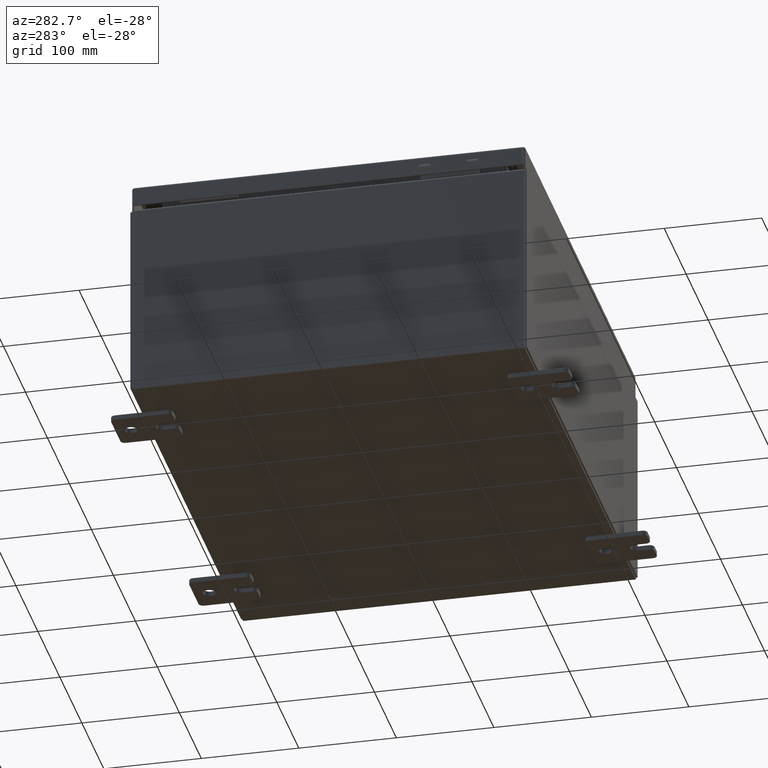
[diagram: clean part render]
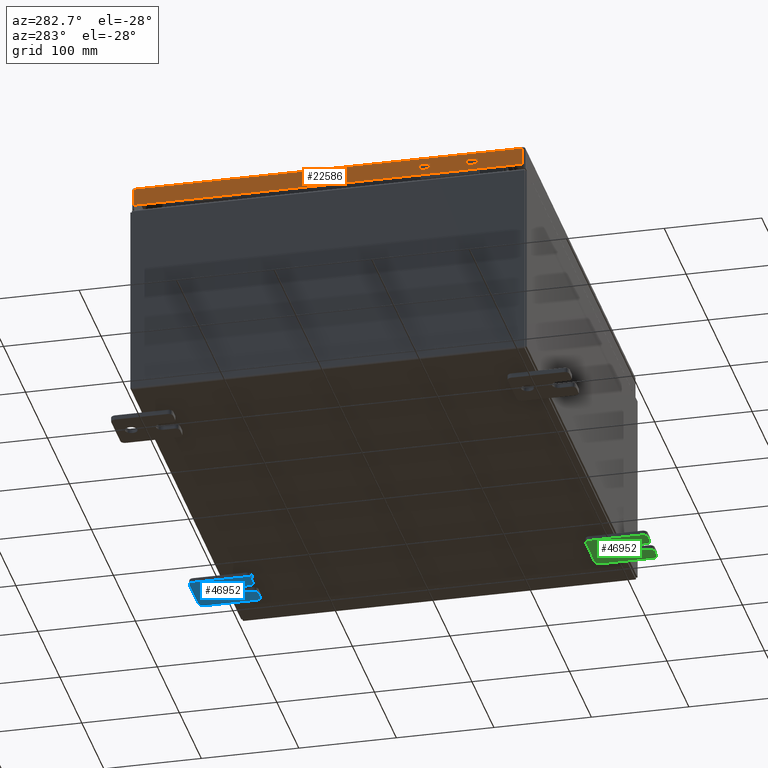
[diagram: same view with three faces highlighted in distinct colors, each labeled with its STEP entity id]
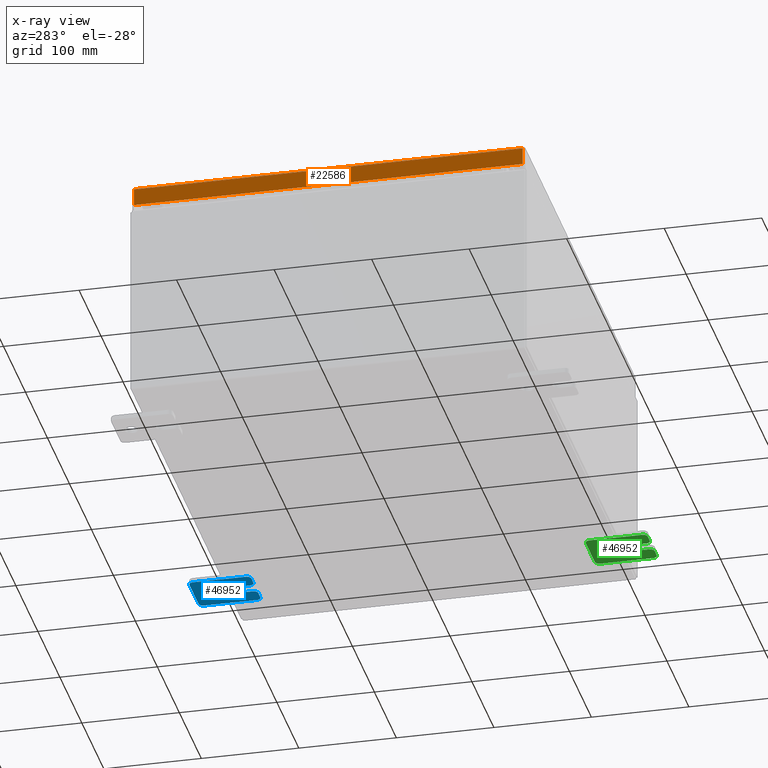
[diagram: x-ray of the same camera — body ghosted, the three highlighted faces saturated]
A machine part, auxiliary view with three faces highlighted in distinct colors.
The next image is the same camera in x-ray (body ghosted, the three faces saturated) — at least one of them is partly hidden behind the body in this view.
Their STEP definitions:

[orange] entity #22586 — the highlighted planar face has unit normal (1, 0, -0).
#2140 = LINE ( 'NONE', #54668, #55309 ) ;
#2833 = CARTESIAN_POINT ( 'NONE',  ( -9.937500000000000000, -7.848657864376261500, -0.7949999999999996000 ) ) ;
#7144 = FACE_OUTER_BOUND ( 'NONE', #55888, .T. ) ;
#8194 = AXIS2_PLACEMENT_3D ( 'NONE', #50796, #12360, #46335 ) ;
#10533 = VECTOR ( 'NONE', #19067, 39.37007874015748100 ) ;
#12294 = DIRECTION ( 'NONE',  ( -3.034122441942816500E-015, 6.982962677686265900E-015, -1.000000000000000000 ) ) ;
#12360 = DIRECTION ( 'NONE',  ( 1.000000000000000000, 3.654886874889598900E-031, -3.034122441942816500E-015 ) ) ;
#18579 = VECTOR ( 'NONE', #57207, 39.37007874015748100 ) ;
#18756 = EDGE_CURVE ( 'NONE', #51115, #52933, #2140, .T. ) ;
#19067 = DIRECTION ( 'NONE',  ( -3.034122441942816500E-015, 6.982962677686265900E-015, -1.000000000000000000 ) ) ;
#19954 = EDGE_CURVE ( 'NONE', #59222, #51115, #23309, .T. ) ;
#22586 = ADVANCED_FACE ( 'NONE', ( #7144 ), #51005, .F. ) ;
#23309 = LINE ( 'NONE', #46266, #34694 ) ;
#25583 = DIRECTION ( 'NONE',  ( 4.379057701015054300E-047, 1.000000000000000000, 1.204594390907076900E-016 ) ) ;
#25755 = ORIENTED_EDGE ( 'NONE', *, *, #18756, .F. ) ;
#26566 = CARTESIAN_POINT ( 'NONE',  ( -9.937499999999998200, -7.848657864376265900, -0.08770000000000026400 ) ) ;
#28131 = CARTESIAN_POINT ( 'NONE',  ( -9.937499999999998200, -7.937499999999999100, -0.08770000000000026400 ) ) ;
#32832 = ORIENTED_EDGE ( 'NONE', *, *, #59875, .T. ) ;
#34694 = VECTOR ( 'NONE', #12294, 39.37007874015748100 ) ;
#36373 = LINE ( 'NONE', #62600, #10533 ) ;
#38556 = VERTEX_POINT ( 'NONE', #55147 ) ;
#41212 = ORIENTED_EDGE ( 'NONE', *, *, #51222, .F. ) ;
#41465 = CARTESIAN_POINT ( 'NONE',  ( -9.937500000000000000, 7.848657864376274800, -0.7949999999999973800 ) ) ;
#44367 = LINE ( 'NONE', #28131, #18579 ) ;
#46266 = CARTESIAN_POINT ( 'NONE',  ( -9.937499999999998200, -7.848657864376267700, -0.07470000000000015500 ) ) ;
#46335 = DIRECTION ( 'NONE',  ( -3.034122441942816500E-015, 0.0000000000000000000, -1.000000000000000000 ) ) ;
#50796 = CARTESIAN_POINT ( 'NONE',  ( -9.937499999999998200, 0.0000000000000000000, 3.059669752903974500E-014 ) ) ;
#51005 = PLANE ( 'NONE',  #8194 ) ;
#51115 = VERTEX_POINT ( 'NONE', #2833 ) ;
#51222 = EDGE_CURVE ( 'NONE', #38556, #59222, #44367, .T. ) ;
#51895 = ORIENTED_EDGE ( 'NONE', *, *, #19954, .F. ) ;
#52933 = VERTEX_POINT ( 'NONE', #41465 ) ;
#54668 = CARTESIAN_POINT ( 'NONE',  ( -9.937500000000000000, -7.937499999999999100, -0.7949999999999996000 ) ) ;
#55147 = CARTESIAN_POINT ( 'NONE',  ( -9.937499999999998200, 7.848657864376270300, -0.08770000000000026400 ) ) ;
#55309 = VECTOR ( 'NONE', #25583, 39.37007874015748100 ) ;
#55888 = EDGE_LOOP ( 'NONE', ( #41212, #32832, #25755, #51895 ) ) ;
#57207 = DIRECTION ( 'NONE',  ( 3.654886874889599300E-031, -1.000000000000000000, -1.077392013397602500E-045 ) ) ;
#59222 = VERTEX_POINT ( 'NONE', #26566 ) ;
#59875 = EDGE_CURVE ( 'NONE', #38556, #52933, #36373, .T. ) ;
#62600 = CARTESIAN_POINT ( 'NONE',  ( -9.937499999999998200, 7.848657864376270300, 8.523365740232501700E-014 ) ) ;

[blue] entity #46952 — the highlighted planar face has unit normal (0, 0, 1).
#594 = DIRECTION ( 'NONE',  ( 0.0000000000000000000, 0.0000000000000000000, -1.000000000000000000 ) ) ;
#730 = ORIENTED_EDGE ( 'NONE', *, *, #60335, .F. ) ;
#969 = DIRECTION ( 'NONE',  ( 0.0000000000000000000, 1.000000000000000000, -1.639108796198558100E-015 ) ) ;
#2200 = DIRECTION ( 'NONE',  ( 0.0000000000000000000, 0.0000000000000000000, -1.000000000000000000 ) ) ;
#2357 = EDGE_LOOP ( 'NONE', ( #4064, #15893 ) ) ;
#2824 = VERTEX_POINT ( 'NONE', #33413 ) ;
#4064 = ORIENTED_EDGE ( 'NONE', *, *, #24241, .T. ) ;
#4345 = CIRCLE ( 'NONE', #62542, 0.2499999999999999200 ) ;
#5141 = VECTOR ( 'NONE', #13257, 39.37007874015748100 ) ;
#5273 = CARTESIAN_POINT ( 'NONE',  ( -0.1879999999999997500, -1.060000000000001200, 0.8099999999999981700 ) ) ;
#5608 = CIRCLE ( 'NONE', #62416, 0.1900000000000011400 ) ;
#6209 = CARTESIAN_POINT ( 'NONE',  ( -0.1879999999999997500, -1.250000000000003300, 0.4400000000000018900 ) ) ;
#6412 = ORIENTED_EDGE ( 'NONE', *, *, #38253, .T. ) ;
#6669 = CARTESIAN_POINT ( 'NONE',  ( -0.1880000000000009700, 0.6249999999999988900, 0.0000000000000000000 ) ) ;
#6699 = FACE_BOUND ( 'NONE', #2357, .T. ) ;
#7738 = AXIS2_PLACEMENT_3D ( 'NONE', #22507, #42023, #12962 ) ;
#9356 = EDGE_CURVE ( 'NONE', #41976, #20430, #19401, .T. ) ;
#9365 = VECTOR ( 'NONE', #29962, 39.37007874015748100 ) ;
#9514 = LINE ( 'NONE', #25213, #46752 ) ;
#9814 = AXIS2_PLACEMENT_3D ( 'NONE', #6669, #40597, #11523 ) ;
#10135 = DIRECTION ( 'NONE',  ( 0.0000000000000000000, 0.0000000000000000000, -1.000000000000000000 ) ) ;
#10734 = CARTESIAN_POINT ( 'NONE',  ( -0.1879999999999997500, -1.060000000000004500, -0.8100000000000047200 ) ) ;
#10978 = CARTESIAN_POINT ( 'NONE',  ( -0.1879999999999997500, -1.060000000000001200, 0.9999999999999992200 ) ) ;
#11523 = DIRECTION ( 'NONE',  ( 0.0000000000000000000, 0.0000000000000000000, -1.000000000000000000 ) ) ;
#11671 = VECTOR ( 'NONE', #58046, 39.37007874015748100 ) ;
#11704 = ORIENTED_EDGE ( 'NONE', *, *, #30404, .F. ) ;
#12346 = CARTESIAN_POINT ( 'NONE',  ( -0.1879999999999997500, -1.060000000000002300, 0.4400000000000018900 ) ) ;
#12586 = CARTESIAN_POINT ( 'NONE',  ( -0.1880000000000001400, -0.6249999999999988900, 0.2500000000000008900 ) ) ;
#12962 = DIRECTION ( 'NONE',  ( 0.0000000000000000000, 0.0000000000000000000, -1.000000000000000000 ) ) ;
#13257 = DIRECTION ( 'NONE',  ( -6.556435184794182400E-016, -1.000000000000000000, -1.639108796198545600E-016 ) ) ;
#13766 = DIRECTION ( 'NONE',  ( -1.000000000000000000, 6.523827964459549700E-016, 5.163192708025532000E-017 ) ) ;
#13945 = AXIS2_PLACEMENT_3D ( 'NONE', #5273, #39210, #10135 ) ;
#14741 = LINE ( 'NONE', #53152, #11671 ) ;
#15258 = ORIENTED_EDGE ( 'NONE', *, *, #52324, .T. ) ;
#15645 = DIRECTION ( 'NONE',  ( 0.0000000000000000000, 0.0000000000000000000, -1.000000000000000000 ) ) ;
#15893 = ORIENTED_EDGE ( 'NONE', *, *, #34207, .T. ) ;
#16572 = FACE_OUTER_BOUND ( 'NONE', #49659, .T. ) ;
#17206 = CARTESIAN_POINT ( 'NONE',  ( -0.1879999999999997500, -1.060000000000003400, -0.4400000000000007800 ) ) ;
#17223 = CARTESIAN_POINT ( 'NONE',  ( -0.1879999999999997500, 1.249999999999994700, -0.8100000000000091600 ) ) ;
#17257 = DIRECTION ( 'NONE',  ( 0.0000000000000000000, 0.0000000000000000000, -1.000000000000000000 ) ) ;
#18088 = CARTESIAN_POINT ( 'NONE',  ( -0.1880000000000009700, 0.6249999999999988900, 0.2499999999999999200 ) ) ;
#18597 = VERTEX_POINT ( 'NONE', #19506 ) ;
#19401 = CIRCLE ( 'NONE', #49813, 0.1900000000000011100 ) ;
#19506 = CARTESIAN_POINT ( 'NONE',  ( -0.1879999999999997500, 1.059999999999993600, -1.000000000000010000 ) ) ;
#19614 = ORIENTED_EDGE ( 'NONE', *, *, #20236, .F. ) ;
#20176 = CARTESIAN_POINT ( 'NONE',  ( -0.1879999999999997500, 1.249999999999994700, -1.000000000000010000 ) ) ;
#20236 = EDGE_CURVE ( 'NONE', #31451, #2824, #4345, .T. ) ;
#20430 = VERTEX_POINT ( 'NONE', #30309 ) ;
#21142 = CARTESIAN_POINT ( 'NONE',  ( -0.1879999999999997500, 1.059999999999996900, 0.9999999999999958900 ) ) ;
#22056 = DIRECTION ( 'NONE',  ( 0.0000000000000000000, 0.0000000000000000000, -1.000000000000000000 ) ) ;
#22355 = AXIS2_PLACEMENT_3D ( 'NONE', #58768, #29710, #594 ) ;
#22507 = CARTESIAN_POINT ( 'NONE',  ( -0.1879999999999997500, 0.0000000000000000000, 0.0000000000000000000 ) ) ;
#23600 = CARTESIAN_POINT ( 'NONE',  ( -0.1879999999999997500, -1.250000000000002200, 0.8099999999999981700 ) ) ;
#23762 = VERTEX_POINT ( 'NONE', #17223 ) ;
#24024 = CARTESIAN_POINT ( 'NONE',  ( -0.1879999999999997500, -1.250000000000002200, 0.9999999999999992200 ) ) ;
#24061 = ORIENTED_EDGE ( 'NONE', *, *, #32159, .T. ) ;
#24241 = EDGE_CURVE ( 'NONE', #42877, #53976, #53347, .T. ) ;
#24730 = CIRCLE ( 'NONE', #55678, 0.2499999999999999200 ) ;
#24992 = DIRECTION ( 'NONE',  ( 6.556435184794182400E-016, 1.000000000000000000, 0.0000000000000000000 ) ) ;
#25213 = CARTESIAN_POINT ( 'NONE',  ( -0.1880000000000005600, -1.250000000000003300, 0.2500000000000008900 ) ) ;
#26315 = AXIS2_PLACEMENT_3D ( 'NONE', #10734, #44692, #15645 ) ;
#26543 = VERTEX_POINT ( 'NONE', #46255 ) ;
#27303 = DIRECTION ( 'NONE',  ( 1.000000000000000000, 0.0000000000000000000, -5.163192708025532000E-017 ) ) ;
#28081 = CARTESIAN_POINT ( 'NONE',  ( -0.1879999999999997500, -1.060000000000004500, -1.000000000000006900 ) ) ;
#29710 = DIRECTION ( 'NONE',  ( -1.000000000000000000, -0.0000000000000000000, -0.0000000000000000000 ) ) ;
#29962 = DIRECTION ( 'NONE',  ( 0.0000000000000000000, 1.639108796198553600E-015, 1.000000000000000000 ) ) ;
#30309 = CARTESIAN_POINT ( 'NONE',  ( -0.1880000000000004200, -1.060000000000003400, -0.2499999999999998100 ) ) ;
#30404 = EDGE_CURVE ( 'NONE', #38548, #34924, #49282, .T. ) ;
#30752 = CIRCLE ( 'NONE', #13945, 0.1900000000000011100 ) ;
#31177 = CIRCLE ( 'NONE', #26315, 0.1900000000000011100 ) ;
#31270 = DIRECTION ( 'NONE',  ( -1.000000000000000000, -0.0000000000000000000, -0.0000000000000000000 ) ) ;
#31451 = VERTEX_POINT ( 'NONE', #12586 ) ;
#32159 = EDGE_CURVE ( 'NONE', #23762, #18597, #39282, .T. ) ;
#32308 = PLANE ( 'NONE',  #7738 ) ;
#32980 = ORIENTED_EDGE ( 'NONE', *, *, #40216, .F. ) ;
#33413 = CARTESIAN_POINT ( 'NONE',  ( -0.1880000000000001400, -0.6249999999999988900, -0.2499999999999998100 ) ) ;
#33541 = VERTEX_POINT ( 'NONE', #43679 ) ;
#34207 = EDGE_CURVE ( 'NONE', #53976, #42877, #24730, .T. ) ;
#34848 = EDGE_CURVE ( 'NONE', #33541, #31451, #9514, .T. ) ;
#34924 = VERTEX_POINT ( 'NONE', #10978 ) ;
#35194 = LINE ( 'NONE', #20176, #9365 ) ;
#35583 = VECTOR ( 'NONE', #53105, 39.37007874015748100 ) ;
#36175 = VECTOR ( 'NONE', #969, 39.37007874015748100 ) ;
#36219 = EDGE_CURVE ( 'NONE', #38548, #26543, #57370, .T. ) ;
#36796 = VERTEX_POINT ( 'NONE', #49542 ) ;
#37663 = CARTESIAN_POINT ( 'NONE',  ( -0.1880000000000001400, -0.6249999999999988900, -0.2499999999999998100 ) ) ;
#37696 = LINE ( 'NONE', #49354, #36175 ) ;
#38253 = EDGE_CURVE ( 'NONE', #44518, #34924, #30752, .T. ) ;
#38548 = VERTEX_POINT ( 'NONE', #21142 ) ;
#39210 = DIRECTION ( 'NONE',  ( -1.000000000000000000, -0.0000000000000000000, -0.0000000000000000000 ) ) ;
#39282 = CIRCLE ( 'NONE', #45412, 0.1900000000000011100 ) ;
#39960 = VERTEX_POINT ( 'NONE', #28081 ) ;
#40216 = EDGE_CURVE ( 'NONE', #23762, #26543, #35194, .T. ) ;
#40597 = DIRECTION ( 'NONE',  ( 1.000000000000000000, 0.0000000000000000000, -5.163192708025532000E-017 ) ) ;
#41771 = ORIENTED_EDGE ( 'NONE', *, *, #9356, .T. ) ;
#41976 = VERTEX_POINT ( 'NONE', #45390 ) ;
#42023 = DIRECTION ( 'NONE',  ( 1.000000000000000000, 0.0000000000000000000, 0.0000000000000000000 ) ) ;
#42437 = CARTESIAN_POINT ( 'NONE',  ( -0.1880000000000009700, 0.6249999999999988900, -0.2499999999999999200 ) ) ;
#42826 = CARTESIAN_POINT ( 'NONE',  ( -0.1880000000000001400, -0.6249999999999988900, 0.0000000000000000000 ) ) ;
#42877 = VERTEX_POINT ( 'NONE', #42437 ) ;
#43679 = CARTESIAN_POINT ( 'NONE',  ( -0.1880000000000004200, -1.060000000000002300, 0.2500000000000008900 ) ) ;
#43913 = EDGE_CURVE ( 'NONE', #39960, #36796, #31177, .T. ) ;
#44518 = VERTEX_POINT ( 'NONE', #23600 ) ;
#44692 = DIRECTION ( 'NONE',  ( -1.000000000000000000, -0.0000000000000000000, -0.0000000000000000000 ) ) ;
#45390 = CARTESIAN_POINT ( 'NONE',  ( -0.1879999999999997500, -1.250000000000004400, -0.4399999999999996700 ) ) ;
#45412 = AXIS2_PLACEMENT_3D ( 'NONE', #60359, #31270, #2200 ) ;
#45875 = ORIENTED_EDGE ( 'NONE', *, *, #61441, .F. ) ;
#46255 = CARTESIAN_POINT ( 'NONE',  ( -0.1879999999999997500, 1.249999999999996700, 0.8099999999999938400 ) ) ;
#46323 = DIRECTION ( 'NONE',  ( -1.000000000000000000, -0.0000000000000000000, -0.0000000000000000000 ) ) ;
#46751 = VERTEX_POINT ( 'NONE', #6209 ) ;
#46752 = VECTOR ( 'NONE', #24992, 39.37007874015748100 ) ;
#46952 = ADVANCED_FACE ( 'NONE', ( #6699, #16572 ), #32308, .F. ) ;
#47718 = DIRECTION ( 'NONE',  ( -6.829619984160660000E-016, -1.000000000000000000, 0.0000000000000000000 ) ) ;
#48480 = LINE ( 'NONE', #24024, #35583 ) ;
#48847 = CARTESIAN_POINT ( 'NONE',  ( -0.1879999999999997500, 1.249999999999997800, 0.9999999999999947800 ) ) ;
#49150 = EDGE_CURVE ( 'NONE', #39960, #18597, #37696, .T. ) ;
#49282 = LINE ( 'NONE', #48847, #50808 ) ;
#49354 = CARTESIAN_POINT ( 'NONE',  ( -0.1879999999999997500, -1.250000000000005600, -1.000000000000006900 ) ) ;
#49495 = ORIENTED_EDGE ( 'NONE', *, *, #34848, .F. ) ;
#49542 = CARTESIAN_POINT ( 'NONE',  ( -0.1879999999999997500, -1.250000000000005600, -0.8100000000000047200 ) ) ;
#49659 = EDGE_LOOP ( 'NONE', ( #53883, #6412, #11704, #58158, #32980, #24061, #61928, #52346, #730, #41771, #45875, #19614, #49495, #15258 ) ) ;
#49813 = AXIS2_PLACEMENT_3D ( 'NONE', #17206, #51161, #22056 ) ;
#50808 = VECTOR ( 'NONE', #53746, 39.37007874015748100 ) ;
#51161 = DIRECTION ( 'NONE',  ( -1.000000000000000000, -0.0000000000000000000, -0.0000000000000000000 ) ) ;
#51969 = EDGE_CURVE ( 'NONE', #44518, #46751, #14741, .T. ) ;
#52324 = EDGE_CURVE ( 'NONE', #33541, #46751, #5608, .T. ) ;
#52346 = ORIENTED_EDGE ( 'NONE', *, *, #43913, .T. ) ;
#53105 = DIRECTION ( 'NONE',  ( 0.0000000000000000000, -1.639108796198553600E-015, -1.000000000000000000 ) ) ;
#53152 = CARTESIAN_POINT ( 'NONE',  ( -0.1879999999999997500, -1.250000000000002200, 0.9999999999999992200 ) ) ;
#53347 = CIRCLE ( 'NONE', #9814, 0.2499999999999999200 ) ;
#53746 = DIRECTION ( 'NONE',  ( 0.0000000000000000000, -1.000000000000000000, 1.639108796198558100E-015 ) ) ;
#53883 = ORIENTED_EDGE ( 'NONE', *, *, #51969, .F. ) ;
#53976 = VERTEX_POINT ( 'NONE', #18088 ) ;
#55678 = AXIS2_PLACEMENT_3D ( 'NONE', #56398, #27303, #61274 ) ;
#56398 = CARTESIAN_POINT ( 'NONE',  ( -0.1880000000000009700, 0.6249999999999988900, 0.0000000000000000000 ) ) ;
#57370 = CIRCLE ( 'NONE', #22355, 0.1900000000000011100 ) ;
#58046 = DIRECTION ( 'NONE',  ( 0.0000000000000000000, -1.639108796198553600E-015, -1.000000000000000000 ) ) ;
#58158 = ORIENTED_EDGE ( 'NONE', *, *, #36219, .T. ) ;
#58768 = CARTESIAN_POINT ( 'NONE',  ( -0.1879999999999997500, 1.059999999999995800, 0.8099999999999938400 ) ) ;
#59854 = LINE ( 'NONE', #37663, #5141 ) ;
#60335 = EDGE_CURVE ( 'NONE', #41976, #36796, #48480, .T. ) ;
#60359 = CARTESIAN_POINT ( 'NONE',  ( -0.1879999999999997500, 1.059999999999993600, -0.8100000000000091600 ) ) ;
#61274 = DIRECTION ( 'NONE',  ( 0.0000000000000000000, 0.0000000000000000000, -1.000000000000000000 ) ) ;
#61441 = EDGE_CURVE ( 'NONE', #2824, #20430, #59854, .T. ) ;
#61928 = ORIENTED_EDGE ( 'NONE', *, *, #49150, .F. ) ;
#62416 = AXIS2_PLACEMENT_3D ( 'NONE', #12346, #46323, #17257 ) ;
#62542 = AXIS2_PLACEMENT_3D ( 'NONE', #42826, #13766, #47718 ) ;

[green] entity #46952 — the highlighted planar face has unit normal (0, 0, 1).
#594 = DIRECTION ( 'NONE',  ( 0.0000000000000000000, 0.0000000000000000000, -1.000000000000000000 ) ) ;
#730 = ORIENTED_EDGE ( 'NONE', *, *, #60335, .F. ) ;
#969 = DIRECTION ( 'NONE',  ( 0.0000000000000000000, 1.000000000000000000, -1.639108796198558100E-015 ) ) ;
#2200 = DIRECTION ( 'NONE',  ( 0.0000000000000000000, 0.0000000000000000000, -1.000000000000000000 ) ) ;
#2357 = EDGE_LOOP ( 'NONE', ( #4064, #15893 ) ) ;
#2824 = VERTEX_POINT ( 'NONE', #33413 ) ;
#4064 = ORIENTED_EDGE ( 'NONE', *, *, #24241, .T. ) ;
#4345 = CIRCLE ( 'NONE', #62542, 0.2499999999999999200 ) ;
#5141 = VECTOR ( 'NONE', #13257, 39.37007874015748100 ) ;
#5273 = CARTESIAN_POINT ( 'NONE',  ( -0.1879999999999997500, -1.060000000000001200, 0.8099999999999981700 ) ) ;
#5608 = CIRCLE ( 'NONE', #62416, 0.1900000000000011400 ) ;
#6209 = CARTESIAN_POINT ( 'NONE',  ( -0.1879999999999997500, -1.250000000000003300, 0.4400000000000018900 ) ) ;
#6412 = ORIENTED_EDGE ( 'NONE', *, *, #38253, .T. ) ;
#6669 = CARTESIAN_POINT ( 'NONE',  ( -0.1880000000000009700, 0.6249999999999988900, 0.0000000000000000000 ) ) ;
#6699 = FACE_BOUND ( 'NONE', #2357, .T. ) ;
#7738 = AXIS2_PLACEMENT_3D ( 'NONE', #22507, #42023, #12962 ) ;
#9356 = EDGE_CURVE ( 'NONE', #41976, #20430, #19401, .T. ) ;
#9365 = VECTOR ( 'NONE', #29962, 39.37007874015748100 ) ;
#9514 = LINE ( 'NONE', #25213, #46752 ) ;
#9814 = AXIS2_PLACEMENT_3D ( 'NONE', #6669, #40597, #11523 ) ;
#10135 = DIRECTION ( 'NONE',  ( 0.0000000000000000000, 0.0000000000000000000, -1.000000000000000000 ) ) ;
#10734 = CARTESIAN_POINT ( 'NONE',  ( -0.1879999999999997500, -1.060000000000004500, -0.8100000000000047200 ) ) ;
#10978 = CARTESIAN_POINT ( 'NONE',  ( -0.1879999999999997500, -1.060000000000001200, 0.9999999999999992200 ) ) ;
#11523 = DIRECTION ( 'NONE',  ( 0.0000000000000000000, 0.0000000000000000000, -1.000000000000000000 ) ) ;
#11671 = VECTOR ( 'NONE', #58046, 39.37007874015748100 ) ;
#11704 = ORIENTED_EDGE ( 'NONE', *, *, #30404, .F. ) ;
#12346 = CARTESIAN_POINT ( 'NONE',  ( -0.1879999999999997500, -1.060000000000002300, 0.4400000000000018900 ) ) ;
#12586 = CARTESIAN_POINT ( 'NONE',  ( -0.1880000000000001400, -0.6249999999999988900, 0.2500000000000008900 ) ) ;
#12962 = DIRECTION ( 'NONE',  ( 0.0000000000000000000, 0.0000000000000000000, -1.000000000000000000 ) ) ;
#13257 = DIRECTION ( 'NONE',  ( -6.556435184794182400E-016, -1.000000000000000000, -1.639108796198545600E-016 ) ) ;
#13766 = DIRECTION ( 'NONE',  ( -1.000000000000000000, 6.523827964459549700E-016, 5.163192708025532000E-017 ) ) ;
#13945 = AXIS2_PLACEMENT_3D ( 'NONE', #5273, #39210, #10135 ) ;
#14741 = LINE ( 'NONE', #53152, #11671 ) ;
#15258 = ORIENTED_EDGE ( 'NONE', *, *, #52324, .T. ) ;
#15645 = DIRECTION ( 'NONE',  ( 0.0000000000000000000, 0.0000000000000000000, -1.000000000000000000 ) ) ;
#15893 = ORIENTED_EDGE ( 'NONE', *, *, #34207, .T. ) ;
#16572 = FACE_OUTER_BOUND ( 'NONE', #49659, .T. ) ;
#17206 = CARTESIAN_POINT ( 'NONE',  ( -0.1879999999999997500, -1.060000000000003400, -0.4400000000000007800 ) ) ;
#17223 = CARTESIAN_POINT ( 'NONE',  ( -0.1879999999999997500, 1.249999999999994700, -0.8100000000000091600 ) ) ;
#17257 = DIRECTION ( 'NONE',  ( 0.0000000000000000000, 0.0000000000000000000, -1.000000000000000000 ) ) ;
#18088 = CARTESIAN_POINT ( 'NONE',  ( -0.1880000000000009700, 0.6249999999999988900, 0.2499999999999999200 ) ) ;
#18597 = VERTEX_POINT ( 'NONE', #19506 ) ;
#19401 = CIRCLE ( 'NONE', #49813, 0.1900000000000011100 ) ;
#19506 = CARTESIAN_POINT ( 'NONE',  ( -0.1879999999999997500, 1.059999999999993600, -1.000000000000010000 ) ) ;
#19614 = ORIENTED_EDGE ( 'NONE', *, *, #20236, .F. ) ;
#20176 = CARTESIAN_POINT ( 'NONE',  ( -0.1879999999999997500, 1.249999999999994700, -1.000000000000010000 ) ) ;
#20236 = EDGE_CURVE ( 'NONE', #31451, #2824, #4345, .T. ) ;
#20430 = VERTEX_POINT ( 'NONE', #30309 ) ;
#21142 = CARTESIAN_POINT ( 'NONE',  ( -0.1879999999999997500, 1.059999999999996900, 0.9999999999999958900 ) ) ;
#22056 = DIRECTION ( 'NONE',  ( 0.0000000000000000000, 0.0000000000000000000, -1.000000000000000000 ) ) ;
#22355 = AXIS2_PLACEMENT_3D ( 'NONE', #58768, #29710, #594 ) ;
#22507 = CARTESIAN_POINT ( 'NONE',  ( -0.1879999999999997500, 0.0000000000000000000, 0.0000000000000000000 ) ) ;
#23600 = CARTESIAN_POINT ( 'NONE',  ( -0.1879999999999997500, -1.250000000000002200, 0.8099999999999981700 ) ) ;
#23762 = VERTEX_POINT ( 'NONE', #17223 ) ;
#24024 = CARTESIAN_POINT ( 'NONE',  ( -0.1879999999999997500, -1.250000000000002200, 0.9999999999999992200 ) ) ;
#24061 = ORIENTED_EDGE ( 'NONE', *, *, #32159, .T. ) ;
#24241 = EDGE_CURVE ( 'NONE', #42877, #53976, #53347, .T. ) ;
#24730 = CIRCLE ( 'NONE', #55678, 0.2499999999999999200 ) ;
#24992 = DIRECTION ( 'NONE',  ( 6.556435184794182400E-016, 1.000000000000000000, 0.0000000000000000000 ) ) ;
#25213 = CARTESIAN_POINT ( 'NONE',  ( -0.1880000000000005600, -1.250000000000003300, 0.2500000000000008900 ) ) ;
#26315 = AXIS2_PLACEMENT_3D ( 'NONE', #10734, #44692, #15645 ) ;
#26543 = VERTEX_POINT ( 'NONE', #46255 ) ;
#27303 = DIRECTION ( 'NONE',  ( 1.000000000000000000, 0.0000000000000000000, -5.163192708025532000E-017 ) ) ;
#28081 = CARTESIAN_POINT ( 'NONE',  ( -0.1879999999999997500, -1.060000000000004500, -1.000000000000006900 ) ) ;
#29710 = DIRECTION ( 'NONE',  ( -1.000000000000000000, -0.0000000000000000000, -0.0000000000000000000 ) ) ;
#29962 = DIRECTION ( 'NONE',  ( 0.0000000000000000000, 1.639108796198553600E-015, 1.000000000000000000 ) ) ;
#30309 = CARTESIAN_POINT ( 'NONE',  ( -0.1880000000000004200, -1.060000000000003400, -0.2499999999999998100 ) ) ;
#30404 = EDGE_CURVE ( 'NONE', #38548, #34924, #49282, .T. ) ;
#30752 = CIRCLE ( 'NONE', #13945, 0.1900000000000011100 ) ;
#31177 = CIRCLE ( 'NONE', #26315, 0.1900000000000011100 ) ;
#31270 = DIRECTION ( 'NONE',  ( -1.000000000000000000, -0.0000000000000000000, -0.0000000000000000000 ) ) ;
#31451 = VERTEX_POINT ( 'NONE', #12586 ) ;
#32159 = EDGE_CURVE ( 'NONE', #23762, #18597, #39282, .T. ) ;
#32308 = PLANE ( 'NONE',  #7738 ) ;
#32980 = ORIENTED_EDGE ( 'NONE', *, *, #40216, .F. ) ;
#33413 = CARTESIAN_POINT ( 'NONE',  ( -0.1880000000000001400, -0.6249999999999988900, -0.2499999999999998100 ) ) ;
#33541 = VERTEX_POINT ( 'NONE', #43679 ) ;
#34207 = EDGE_CURVE ( 'NONE', #53976, #42877, #24730, .T. ) ;
#34848 = EDGE_CURVE ( 'NONE', #33541, #31451, #9514, .T. ) ;
#34924 = VERTEX_POINT ( 'NONE', #10978 ) ;
#35194 = LINE ( 'NONE', #20176, #9365 ) ;
#35583 = VECTOR ( 'NONE', #53105, 39.37007874015748100 ) ;
#36175 = VECTOR ( 'NONE', #969, 39.37007874015748100 ) ;
#36219 = EDGE_CURVE ( 'NONE', #38548, #26543, #57370, .T. ) ;
#36796 = VERTEX_POINT ( 'NONE', #49542 ) ;
#37663 = CARTESIAN_POINT ( 'NONE',  ( -0.1880000000000001400, -0.6249999999999988900, -0.2499999999999998100 ) ) ;
#37696 = LINE ( 'NONE', #49354, #36175 ) ;
#38253 = EDGE_CURVE ( 'NONE', #44518, #34924, #30752, .T. ) ;
#38548 = VERTEX_POINT ( 'NONE', #21142 ) ;
#39210 = DIRECTION ( 'NONE',  ( -1.000000000000000000, -0.0000000000000000000, -0.0000000000000000000 ) ) ;
#39282 = CIRCLE ( 'NONE', #45412, 0.1900000000000011100 ) ;
#39960 = VERTEX_POINT ( 'NONE', #28081 ) ;
#40216 = EDGE_CURVE ( 'NONE', #23762, #26543, #35194, .T. ) ;
#40597 = DIRECTION ( 'NONE',  ( 1.000000000000000000, 0.0000000000000000000, -5.163192708025532000E-017 ) ) ;
#41771 = ORIENTED_EDGE ( 'NONE', *, *, #9356, .T. ) ;
#41976 = VERTEX_POINT ( 'NONE', #45390 ) ;
#42023 = DIRECTION ( 'NONE',  ( 1.000000000000000000, 0.0000000000000000000, 0.0000000000000000000 ) ) ;
#42437 = CARTESIAN_POINT ( 'NONE',  ( -0.1880000000000009700, 0.6249999999999988900, -0.2499999999999999200 ) ) ;
#42826 = CARTESIAN_POINT ( 'NONE',  ( -0.1880000000000001400, -0.6249999999999988900, 0.0000000000000000000 ) ) ;
#42877 = VERTEX_POINT ( 'NONE', #42437 ) ;
#43679 = CARTESIAN_POINT ( 'NONE',  ( -0.1880000000000004200, -1.060000000000002300, 0.2500000000000008900 ) ) ;
#43913 = EDGE_CURVE ( 'NONE', #39960, #36796, #31177, .T. ) ;
#44518 = VERTEX_POINT ( 'NONE', #23600 ) ;
#44692 = DIRECTION ( 'NONE',  ( -1.000000000000000000, -0.0000000000000000000, -0.0000000000000000000 ) ) ;
#45390 = CARTESIAN_POINT ( 'NONE',  ( -0.1879999999999997500, -1.250000000000004400, -0.4399999999999996700 ) ) ;
#45412 = AXIS2_PLACEMENT_3D ( 'NONE', #60359, #31270, #2200 ) ;
#45875 = ORIENTED_EDGE ( 'NONE', *, *, #61441, .F. ) ;
#46255 = CARTESIAN_POINT ( 'NONE',  ( -0.1879999999999997500, 1.249999999999996700, 0.8099999999999938400 ) ) ;
#46323 = DIRECTION ( 'NONE',  ( -1.000000000000000000, -0.0000000000000000000, -0.0000000000000000000 ) ) ;
#46751 = VERTEX_POINT ( 'NONE', #6209 ) ;
#46752 = VECTOR ( 'NONE', #24992, 39.37007874015748100 ) ;
#46952 = ADVANCED_FACE ( 'NONE', ( #6699, #16572 ), #32308, .F. ) ;
#47718 = DIRECTION ( 'NONE',  ( -6.829619984160660000E-016, -1.000000000000000000, 0.0000000000000000000 ) ) ;
#48480 = LINE ( 'NONE', #24024, #35583 ) ;
#48847 = CARTESIAN_POINT ( 'NONE',  ( -0.1879999999999997500, 1.249999999999997800, 0.9999999999999947800 ) ) ;
#49150 = EDGE_CURVE ( 'NONE', #39960, #18597, #37696, .T. ) ;
#49282 = LINE ( 'NONE', #48847, #50808 ) ;
#49354 = CARTESIAN_POINT ( 'NONE',  ( -0.1879999999999997500, -1.250000000000005600, -1.000000000000006900 ) ) ;
#49495 = ORIENTED_EDGE ( 'NONE', *, *, #34848, .F. ) ;
#49542 = CARTESIAN_POINT ( 'NONE',  ( -0.1879999999999997500, -1.250000000000005600, -0.8100000000000047200 ) ) ;
#49659 = EDGE_LOOP ( 'NONE', ( #53883, #6412, #11704, #58158, #32980, #24061, #61928, #52346, #730, #41771, #45875, #19614, #49495, #15258 ) ) ;
#49813 = AXIS2_PLACEMENT_3D ( 'NONE', #17206, #51161, #22056 ) ;
#50808 = VECTOR ( 'NONE', #53746, 39.37007874015748100 ) ;
#51161 = DIRECTION ( 'NONE',  ( -1.000000000000000000, -0.0000000000000000000, -0.0000000000000000000 ) ) ;
#51969 = EDGE_CURVE ( 'NONE', #44518, #46751, #14741, .T. ) ;
#52324 = EDGE_CURVE ( 'NONE', #33541, #46751, #5608, .T. ) ;
#52346 = ORIENTED_EDGE ( 'NONE', *, *, #43913, .T. ) ;
#53105 = DIRECTION ( 'NONE',  ( 0.0000000000000000000, -1.639108796198553600E-015, -1.000000000000000000 ) ) ;
#53152 = CARTESIAN_POINT ( 'NONE',  ( -0.1879999999999997500, -1.250000000000002200, 0.9999999999999992200 ) ) ;
#53347 = CIRCLE ( 'NONE', #9814, 0.2499999999999999200 ) ;
#53746 = DIRECTION ( 'NONE',  ( 0.0000000000000000000, -1.000000000000000000, 1.639108796198558100E-015 ) ) ;
#53883 = ORIENTED_EDGE ( 'NONE', *, *, #51969, .F. ) ;
#53976 = VERTEX_POINT ( 'NONE', #18088 ) ;
#55678 = AXIS2_PLACEMENT_3D ( 'NONE', #56398, #27303, #61274 ) ;
#56398 = CARTESIAN_POINT ( 'NONE',  ( -0.1880000000000009700, 0.6249999999999988900, 0.0000000000000000000 ) ) ;
#57370 = CIRCLE ( 'NONE', #22355, 0.1900000000000011100 ) ;
#58046 = DIRECTION ( 'NONE',  ( 0.0000000000000000000, -1.639108796198553600E-015, -1.000000000000000000 ) ) ;
#58158 = ORIENTED_EDGE ( 'NONE', *, *, #36219, .T. ) ;
#58768 = CARTESIAN_POINT ( 'NONE',  ( -0.1879999999999997500, 1.059999999999995800, 0.8099999999999938400 ) ) ;
#59854 = LINE ( 'NONE', #37663, #5141 ) ;
#60335 = EDGE_CURVE ( 'NONE', #41976, #36796, #48480, .T. ) ;
#60359 = CARTESIAN_POINT ( 'NONE',  ( -0.1879999999999997500, 1.059999999999993600, -0.8100000000000091600 ) ) ;
#61274 = DIRECTION ( 'NONE',  ( 0.0000000000000000000, 0.0000000000000000000, -1.000000000000000000 ) ) ;
#61441 = EDGE_CURVE ( 'NONE', #2824, #20430, #59854, .T. ) ;
#61928 = ORIENTED_EDGE ( 'NONE', *, *, #49150, .F. ) ;
#62416 = AXIS2_PLACEMENT_3D ( 'NONE', #12346, #46323, #17257 ) ;
#62542 = AXIS2_PLACEMENT_3D ( 'NONE', #42826, #13766, #47718 ) ;